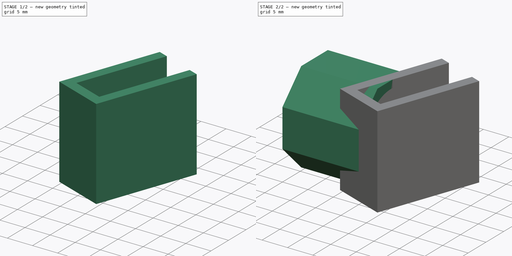
[diagram: build sequence overview — one tinted view per stage of 2, left to right]
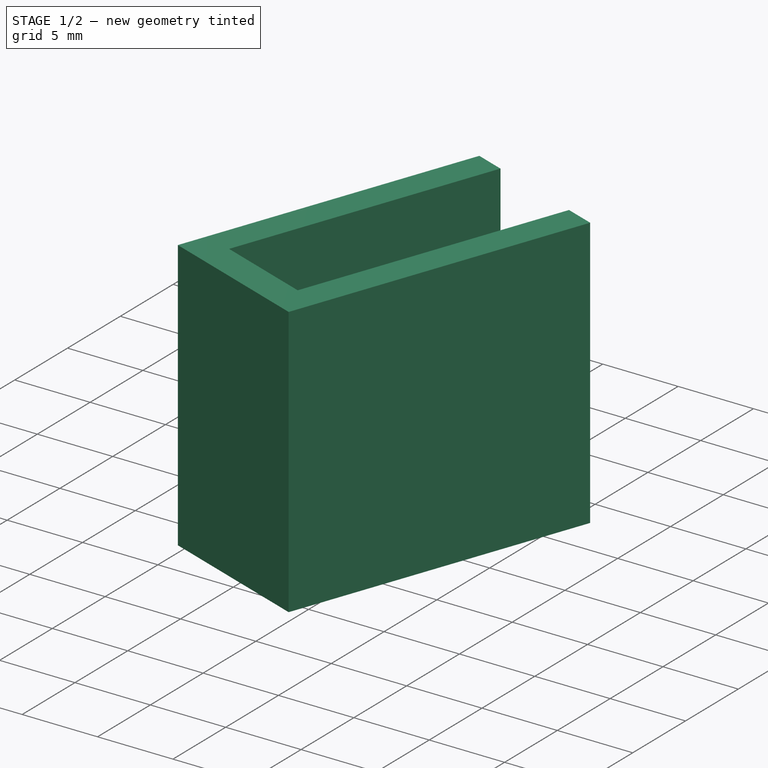
[diagram: stage 1 of 2 — iso view after this stage's code; geometry added in this stage tinted green]
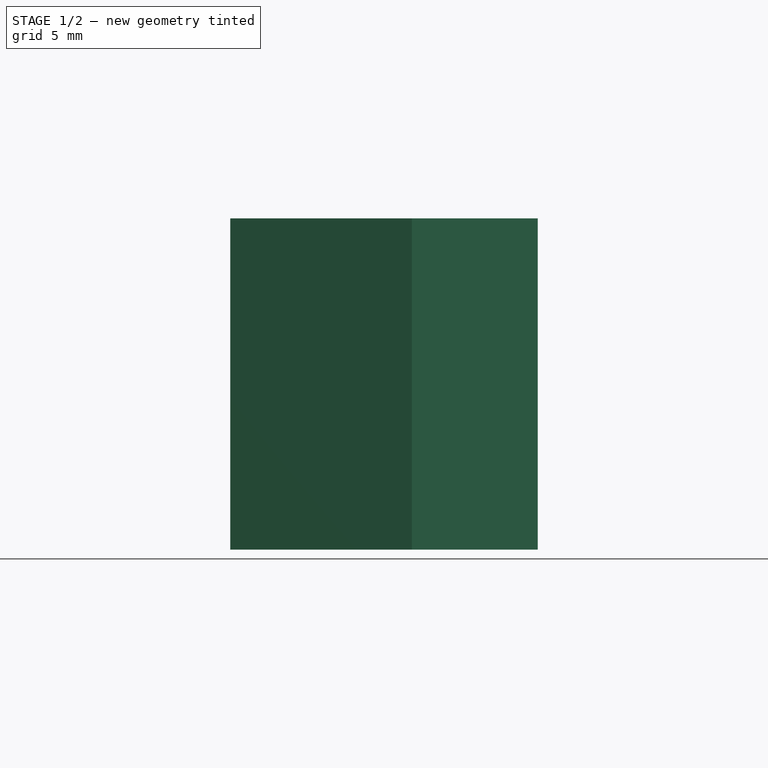
[diagram: stage 1 of 2 — front view after this stage's code; geometry added in this stage tinted green]
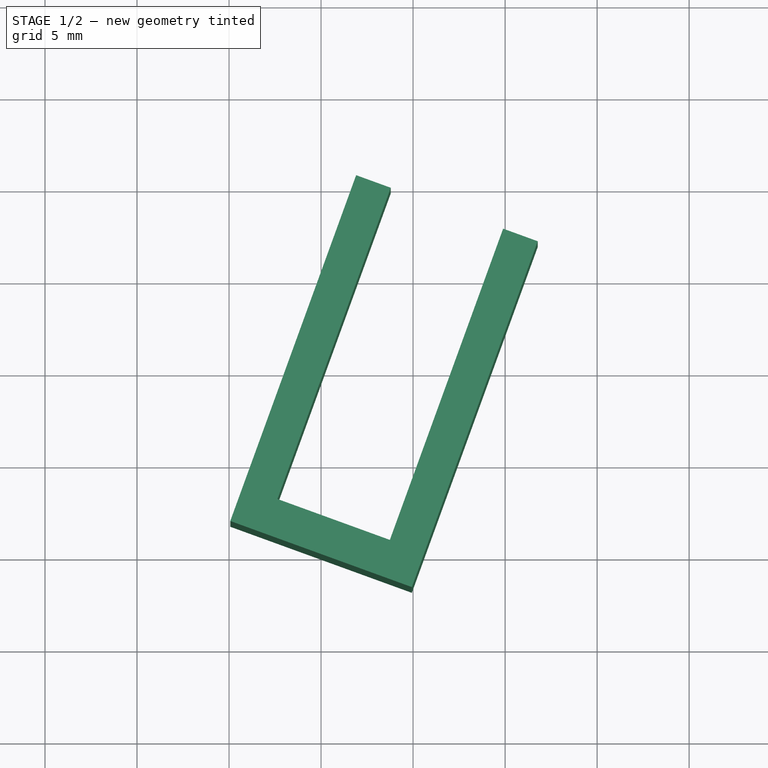
[diagram: stage 1 of 2 — top view after this stage's code; geometry added in this stage tinted green]
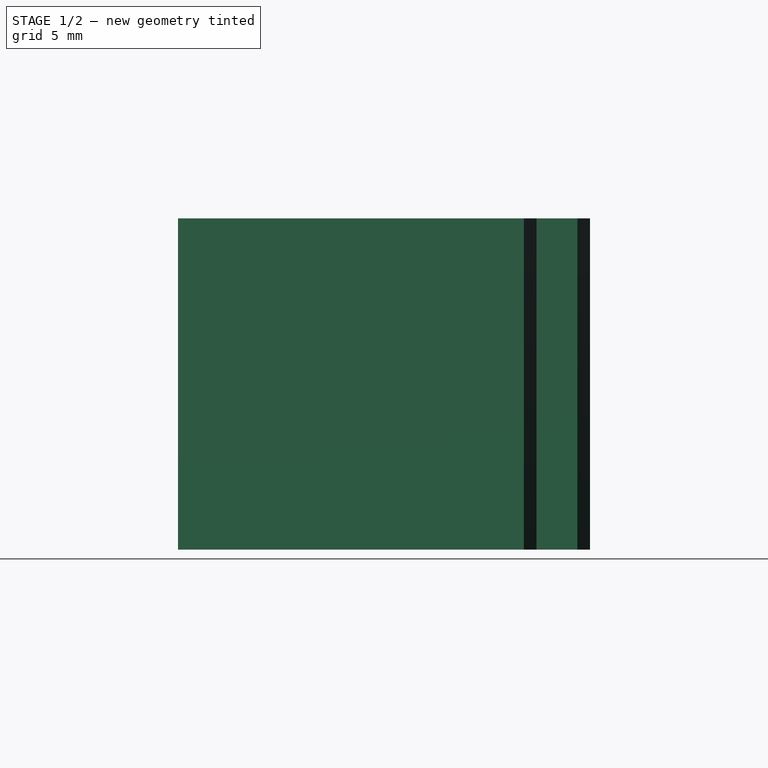
[diagram: stage 1 of 2 — right view after this stage's code; geometry added in this stage tinted green]
FCSTD DOCUMENT  (FreeCAD 0.21R33771 (Git))
Label: Ikea-lampa-napelem-tarto
License: All rights reserved
LicenseURL: http://en.wikipedia.org/wiki/All_rights_reserved
objects: Sketcher::SketchObject×2, PartDesign::Pad×2, PartDesign::Body×1
note: 7 computed .brp shape members not serialized (recipe doc carries the construction recipe); baked Part::Feature solids carry a one-line shape summary decoded from their .brp

FEATURE [Sketcher::SketchObject] Sketch
  AttachmentOffset = pos=(0,0,0) rot=(0,0,1;-0.349066rad)
  FullyConstrained = true
  MapMode = 5
  Placement = pos=(0,0,0) rot=(0,0,1;5.93412rad)
  Support = -> [XY_Plane]
  sketch-geometry (8):
    g0: LineSegment StartX=-5.25 StartY=20 StartZ=0 EndX=-5.25 EndY=0 EndZ=0
    g1: LineSegment StartX=-5.25 StartY=0 StartZ=0 EndX=5.25 EndY=0 EndZ=0
    g2: LineSegment StartX=5.25 StartY=0 StartZ=0 EndX=5.25 EndY=20 EndZ=0
    g3: LineSegment StartX=5.25 StartY=20 StartZ=0 EndX=3.25 EndY=20 EndZ=0
    g4: LineSegment StartX=3.25 StartY=20 StartZ=0 EndX=3.25 EndY=2 EndZ=0
    g5: LineSegment StartX=3.25 StartY=2 StartZ=0 EndX=-3.25 EndY=2 EndZ=0
    g6: LineSegment StartX=-3.25 StartY=2 StartZ=0 EndX=-3.25 EndY=20 EndZ=0
    g7: LineSegment StartX=-3.25 StartY=20 StartZ=0 EndX=-5.25 EndY=20 EndZ=0
  constraints (22):
    c: Vertical(g2)
    c: Coincident(g2,g3)
    c: Horizontal(g3)
    c: Coincident(g3,g4)
    c: Vertical(g4)
    c: Coincident(g4,g5)
    c: Vertical(g6)
    c: Distance(g5) = 6.5
    c: Symmetric(g5,g4,g-2)
    c: Symmetric(g0,g1,g-2)
    c: Equal(g7,g3)
    c: DistanceY(g2,g2) = 20
    c: Equal(g0,g2)
    c: Equal(g6,g4)
    c: Coincident(g6,g5)
    c: Coincident(g2,g1)
    c: Coincident(g0,g1)
    c: Coincident(g7,g0)
    c: Coincident(g6,g7)
    c: PointOnObject(g1,g-1)
    c: Distance(g4,g1) = 2
    c: Distance(g3) = 2
FEATURE [PartDesign::Pad] Pad
  Direction = (0,0,1)
  Length = 18
  Length2 = 10
  Profile = -> Sketch
  ReferenceAxis = -> Sketch [N_Axis]
  Type = 0
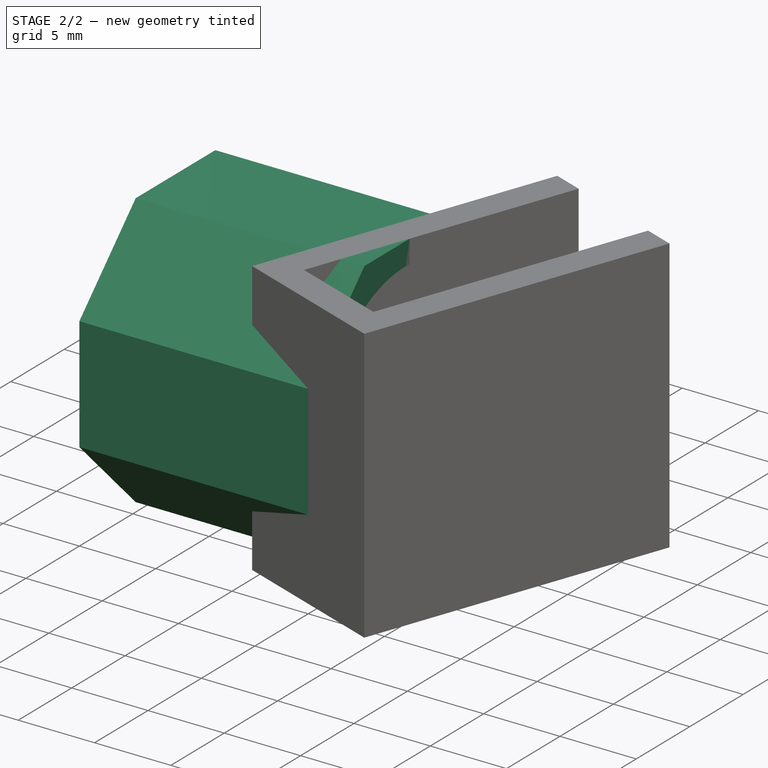
[diagram: stage 2 of 2 — iso view after this stage's code; geometry added in this stage tinted green]
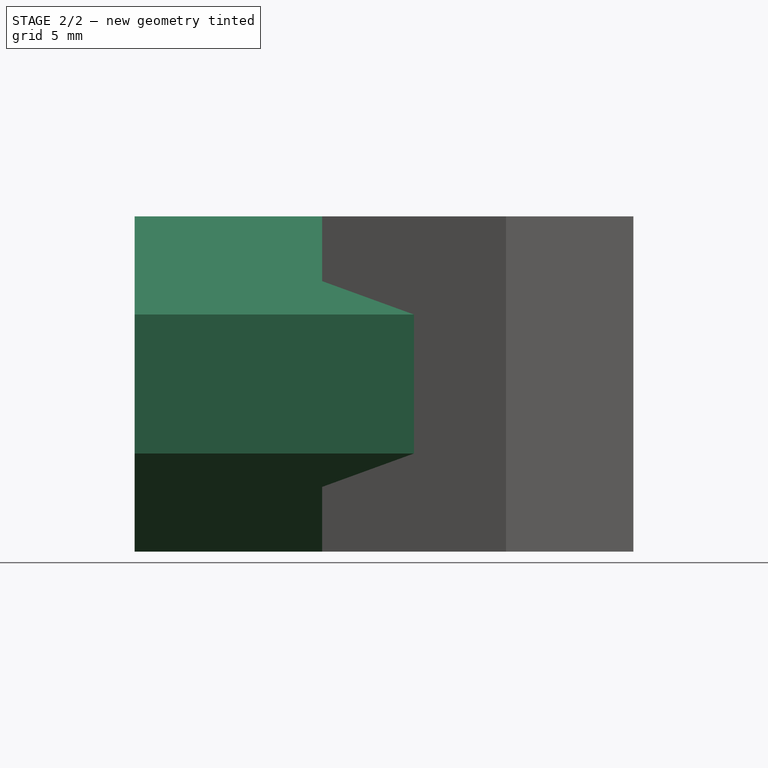
[diagram: stage 2 of 2 — front view after this stage's code; geometry added in this stage tinted green]
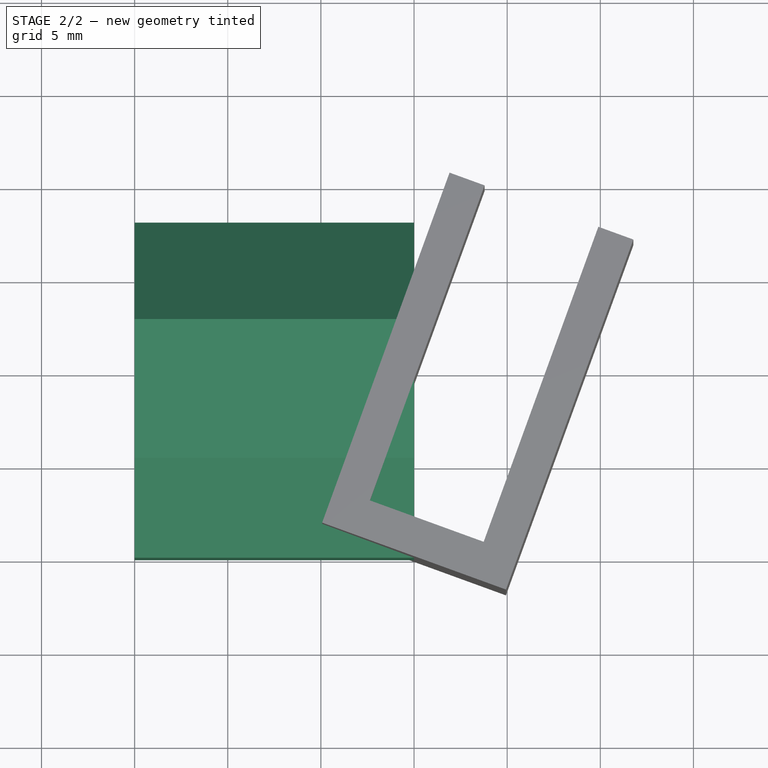
[diagram: stage 2 of 2 — top view after this stage's code; geometry added in this stage tinted green]
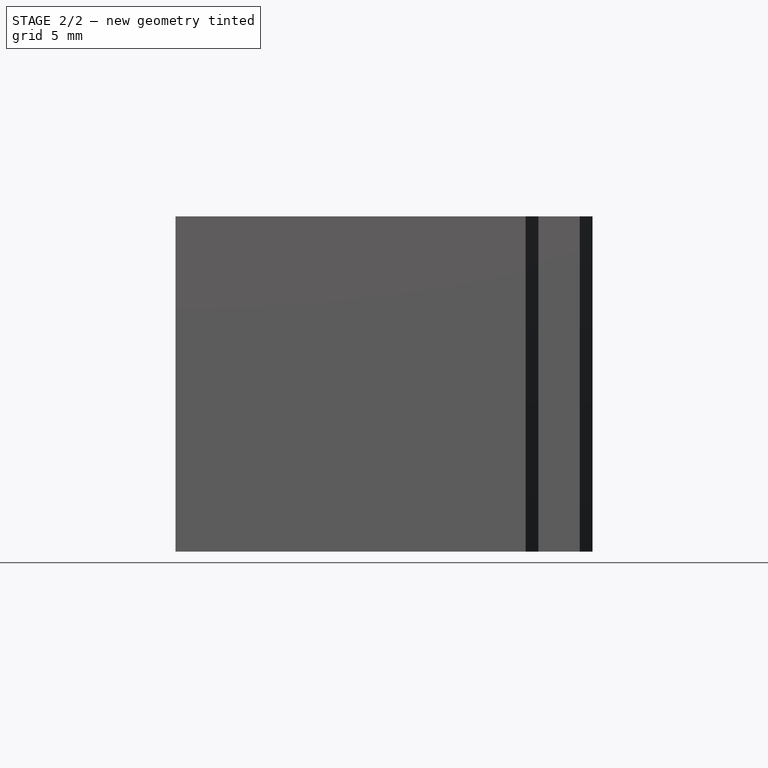
[diagram: stage 2 of 2 — right view after this stage's code; geometry added in this stage tinted green]
FEATURE [Sketcher::SketchObject] Sketch001
  FullyConstrained = true
  MapMode = 5
  Placement = pos=(0,0,0) rot=(0.57735,0.57735,0.57735;2.0944rad)
  Support = -> [YZ_Plane]
  sketch-geometry (11):
    g0: LineSegment StartX=12.7279 StartY=18 StartZ=0 EndX=5.27208 EndY=18 EndZ=0
    g1: LineSegment StartX=5.27208 StartY=18 StartZ=0 EndX=-3.6e-15 EndY=12.7279 EndZ=0
    g2: LineSegment StartX=-3.6e-15 StartY=12.7279 StartZ=0 EndX=-3.7e-15 EndY=5.27208 EndZ=0
    g3: LineSegment StartX=-3.7e-15 StartY=5.27208 StartZ=0 EndX=5.27208 EndY=-3.6e-15 EndZ=0
    g4: LineSegment StartX=5.27208 StartY=-3.6e-15 StartZ=0 EndX=12.7279 EndY=-3.6e-15 EndZ=0
    g5: LineSegment StartX=12.7279 StartY=-3.6e-15 StartZ=0 EndX=18 EndY=5.27208 EndZ=0
    g6: LineSegment StartX=18 StartY=5.27208 StartZ=0 EndX=18 EndY=12.7279 EndZ=0
    g7: LineSegment StartX=18 StartY=12.7279 StartZ=0 EndX=12.7279 EndY=18 EndZ=0
    g8: Circle CenterX=9 CenterY=9 CenterZ=0 NormalX=0 NormalY=0 NormalZ=1 AngleXU=0 Radius=9.74153
    g9: Circle CenterX=9 CenterY=9 CenterZ=0 NormalX=0 NormalY=0 NormalZ=1 AngleXU=0 Radius=7.5
    g10: Circle CenterX=9 CenterY=9 CenterZ=0 NormalX=0 NormalY=0 NormalZ=1 AngleXU=0 Radius=4
  constraints (25):
    c: Coincident(g0,g1)
    c: Coincident(g1,g2)
    c: Coincident(g2,g3)
    c: Coincident(g3,g4)
    c: Coincident(g4,g5)
    c: Coincident(g5,g6)
    c: Coincident(g6,g7)
    c: Coincident(g7,g0)
    c: Equal(g0, g1-g7) x7
    c: PointOnObject(g0,g8)
    c: PointOnObject(g1,g8)
    c: PointOnObject(g2,g8)
    c: PointOnObject(g3,g8)
    c: PointOnObject(g4,g8)
    c: PointOnObject(g5,g8)
    c: PointOnObject(g6,g8)
    c: PointOnObject(g7,g8)
    c: Horizontal(g0)
    c: Distance(g8,g0) = 9
    c: Coincident(g9,g8)
    c: Radius(g9) = 7.5
    c: Coincident(g10,g9)
    c: Radius(g10) = 4
    c: DistanceY(g9,g-1) = -9
    c: DistanceX(g-1,g9) = 9
FEATURE [PartDesign::Pad] Pad001
  BaseFeature = -> Pad
  Direction = (1,-2e-16,3e-16)
  Length = 15
  Length2 = 10
  Profile = -> Sketch001
  ReferenceAxis = -> Sketch001 [N_Axis]
  Reversed = true
  Type = 0
FEATURE [PartDesign::Body] Body
  Group = -> [Sketch,Pad,Sketch001,Pad001]
  Origin = -> Origin
  Tip = -> Pad001
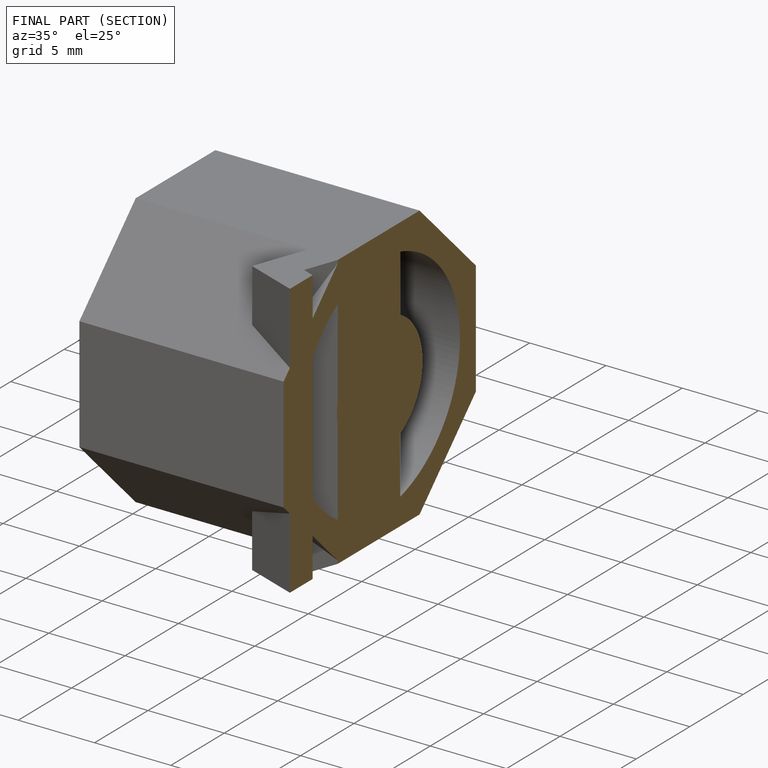
[diagram: finished part — half-section view (interior)]
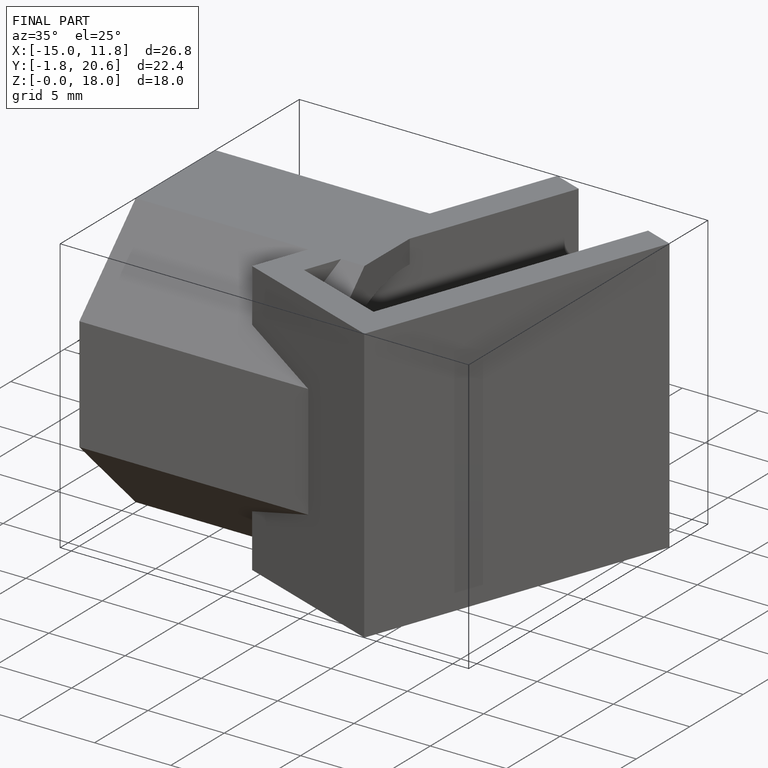
[diagram: finished part — iso view with bounding-box wireframe]
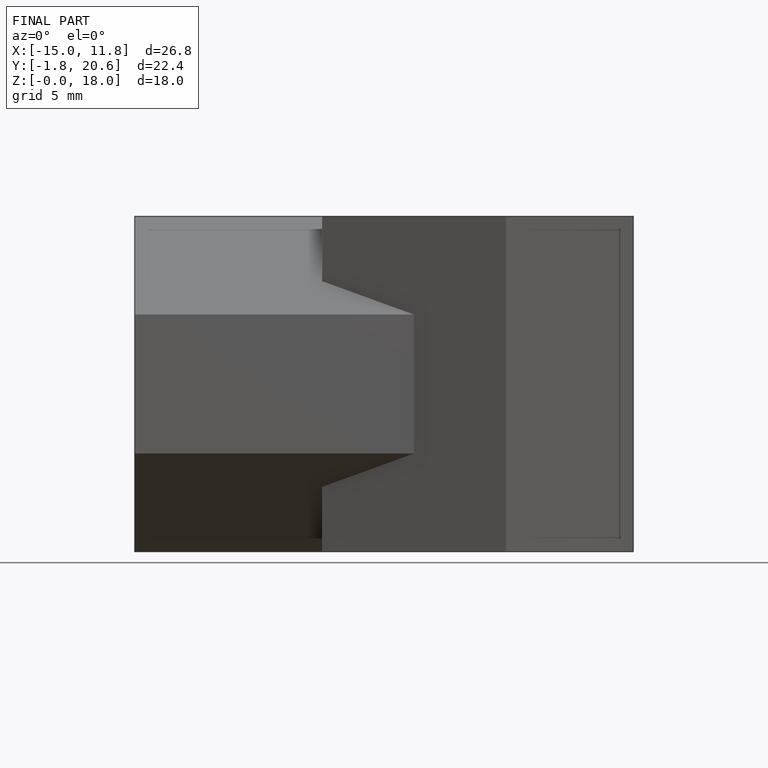
[diagram: finished part — front view with bounding-box wireframe]
